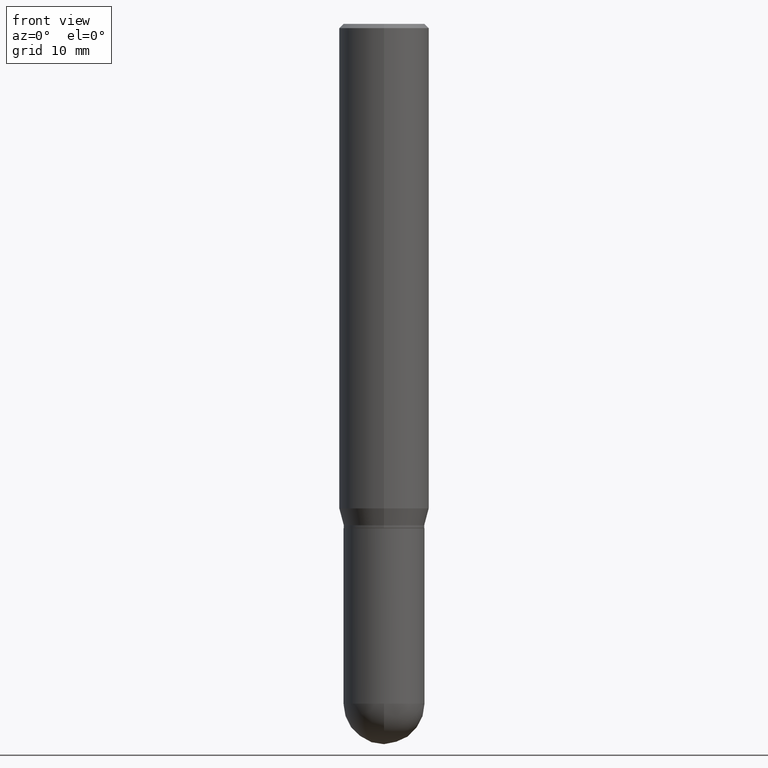
[diagram: clean part render]
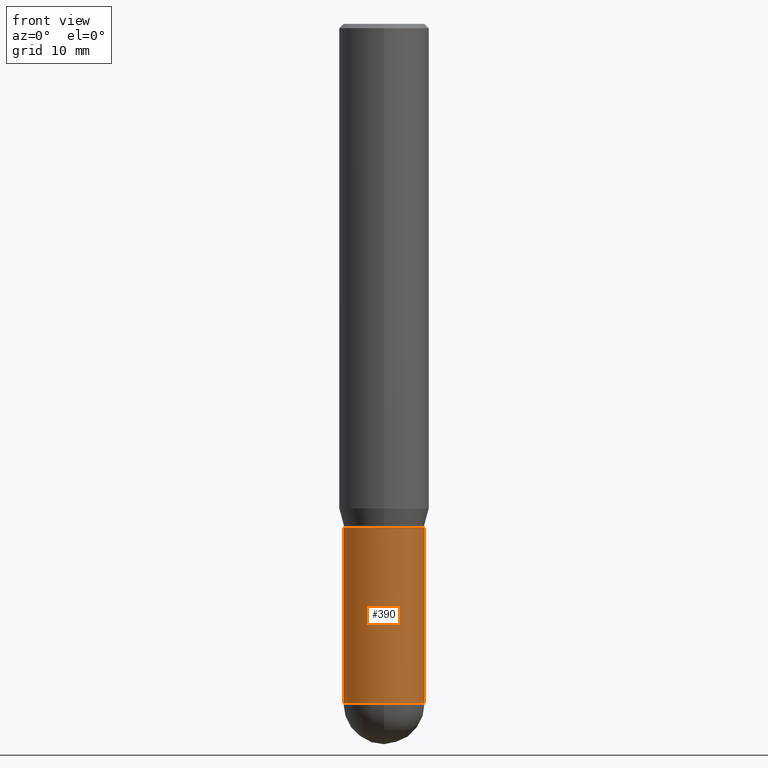
[diagram: same view with one face highlighted and labeled with its STEP entity id]
A machine part, front view. The second image highlights one B-rep face of the part: STEP entity #390.
In plain terms, the highlighted cylindrical surface (partial cylindrical patch) has radius 3.5712 mm, axis along (-0, 0, 1).
Its self-contained STEP definition (entity closure, byte-faithful):
#16 = AXIS2_PLACEMENT_3D ( 'NONE', #355, #509, #238 ) ;
#46 = VERTEX_POINT ( 'NONE', #131 ) ;
#68 = CARTESIAN_POINT ( 'NONE',  ( -0.1406000000000000028, -6.174923620442310269E-15, -1.750000000000000222 ) ) ;
#72 = DIRECTION ( 'NONE',  ( -2.445468806185136877E-29, 3.491481338843145188E-15, 1.000000000000000000 ) ) ;
#118 = LINE ( 'NONE', #460, #140 ) ;
#131 = CARTESIAN_POINT ( 'NONE',  ( 0.1406000000000000583, -8.155751259403701439E-15, -2.359399999999999942 ) ) ;
#140 = VECTOR ( 'NONE', #72, 39.37007874015748143 ) ;
#155 = CYLINDRICAL_SURFACE ( 'NONE', #16, 0.1406000000000000028 ) ;
#166 = EDGE_CURVE ( 'NONE', #46, #245, #416, .T. ) ;
#191 = CARTESIAN_POINT ( 'NONE',  ( 0.1406000000000000028, -7.091896895458194566E-15, -1.750000000000000222 ) ) ;
#195 = DIRECTION ( 'NONE',  ( 1.000000000000000000, -6.982962677686270655E-15, 0.000000000000000000 ) ) ;
#213 = EDGE_LOOP ( 'NONE', ( #485, #349, #284, #469, #319 ) ) ;
#230 = CARTESIAN_POINT ( 'NONE',  ( 0.1406000000000000028, -9.818045524826893030E-16, 6.855904546769086274E-30 ) ) ;
#231 = CARTESIAN_POINT ( 'NONE',  ( 4.279570410823989044E-29, -6.110092342975505460E-15, -1.750000000000000222 ) ) ;
#232 = DIRECTION ( 'NONE',  ( -2.445468806185136597E-29, 3.491481338843145583E-15, 1.000000000000000000 ) ) ;
#238 = DIRECTION ( 'NONE',  ( 1.000000000000000000, -6.982962677686268288E-15, 4.876176775795936353E-29 ) ) ;
#245 = VERTEX_POINT ( 'NONE', #191 ) ;
#272 = CARTESIAN_POINT ( 'NONE',  ( -0.1406000000000000583, -6.174923620442310269E-15, -2.359399999999999942 ) ) ;
#281 = VERTEX_POINT ( 'NONE', #272 ) ;
#284 = ORIENTED_EDGE ( 'NONE', *, *, #339, .T. ) ;
#285 = VERTEX_POINT ( 'NONE', #68 ) ;
#288 = CIRCLE ( 'NONE', #424, 0.1406000000000000028 ) ;
#293 = EDGE_CURVE ( 'NONE', #281, #484, #431, .T. ) ;
#301 = EDGE_CURVE ( 'NONE', #285, #245, #288, .T. ) ;
#306 = DIRECTION ( 'NONE',  ( 1.000000000000000000, -6.982962677686265133E-15, 0.000000000000000000 ) ) ;
#319 = ORIENTED_EDGE ( 'NONE', *, *, #301, .F. ) ;
#339 = EDGE_CURVE ( 'NONE', #484, #46, #457, .T. ) ;
#344 = EDGE_CURVE ( 'NONE', #281, #285, #118, .T. ) ;
#348 = CARTESIAN_POINT ( 'NONE',  ( 5.769839101313211634E-29, -8.237801070866517629E-15, -2.359399999999999942 ) ) ;
#349 = ORIENTED_EDGE ( 'NONE', *, *, #293, .T. ) ;
#355 = CARTESIAN_POINT ( 'NONE',  ( 0.000000000000000000, 0.000000000000000000, 0.000000000000000000 ) ) ;
#384 = DIRECTION ( 'NONE',  ( -2.445468806185136597E-29, 3.491481338843145583E-15, 1.000000000000000000 ) ) ;
#390 = ADVANCED_FACE ( 'NONE', ( #423 ), #155, .T. ) ;
#393 = CARTESIAN_POINT ( 'NONE',  ( -9.990230864786434913E-16, -0.1406000000000083017, -2.359399999999999498 ) ) ;
#411 = VECTOR ( 'NONE', #450, 39.37007874015748143 ) ;
#416 = LINE ( 'NONE', #230, #411 ) ;
#423 = FACE_OUTER_BOUND ( 'NONE', #213, .T. ) ;
#424 = AXIS2_PLACEMENT_3D ( 'NONE', #231, #384, #306 ) ;
#431 = CIRCLE ( 'NONE', #503, 0.1406000000000000305 ) ;
#433 = DIRECTION ( 'NONE',  ( 1.000000000000000000, -6.982962677686270655E-15, 0.000000000000000000 ) ) ;
#446 = AXIS2_PLACEMENT_3D ( 'NONE', #490, #462, #433 ) ;
#450 = DIRECTION ( 'NONE',  ( -2.445468806185136877E-29, 3.491481338843145188E-15, 1.000000000000000000 ) ) ;
#457 = CIRCLE ( 'NONE', #446, 0.1406000000000000305 ) ;
#460 = CARTESIAN_POINT ( 'NONE',  ( -0.1406000000000000028, 9.990230864787008809E-16, -6.916022736898399140E-30 ) ) ;
#462 = DIRECTION ( 'NONE',  ( -2.445468806185136597E-29, 3.491481338843145583E-15, 1.000000000000000000 ) ) ;
#469 = ORIENTED_EDGE ( 'NONE', *, *, #166, .T. ) ;
#484 = VERTEX_POINT ( 'NONE', #393 ) ;
#485 = ORIENTED_EDGE ( 'NONE', *, *, #344, .F. ) ;
#490 = CARTESIAN_POINT ( 'NONE',  ( 5.769839101313211634E-29, -8.237801070866517629E-15, -2.359399999999999942 ) ) ;
#503 = AXIS2_PLACEMENT_3D ( 'NONE', #348, #232, #195 ) ;
#509 = DIRECTION ( 'NONE',  ( -2.445468806185136597E-29, 3.491481338843145583E-15, 1.000000000000000000 ) ) ;